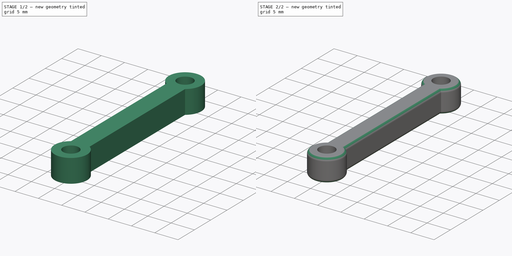
[diagram: build sequence overview — one tinted view per stage of 2, left to right]
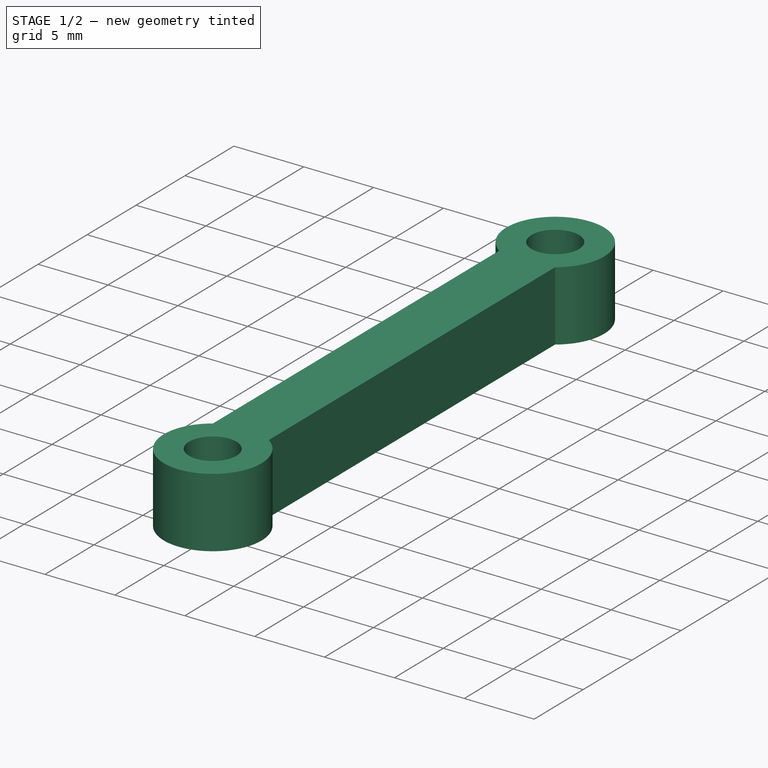
[diagram: stage 1 of 2 — iso view after this stage's code; geometry added in this stage tinted green]
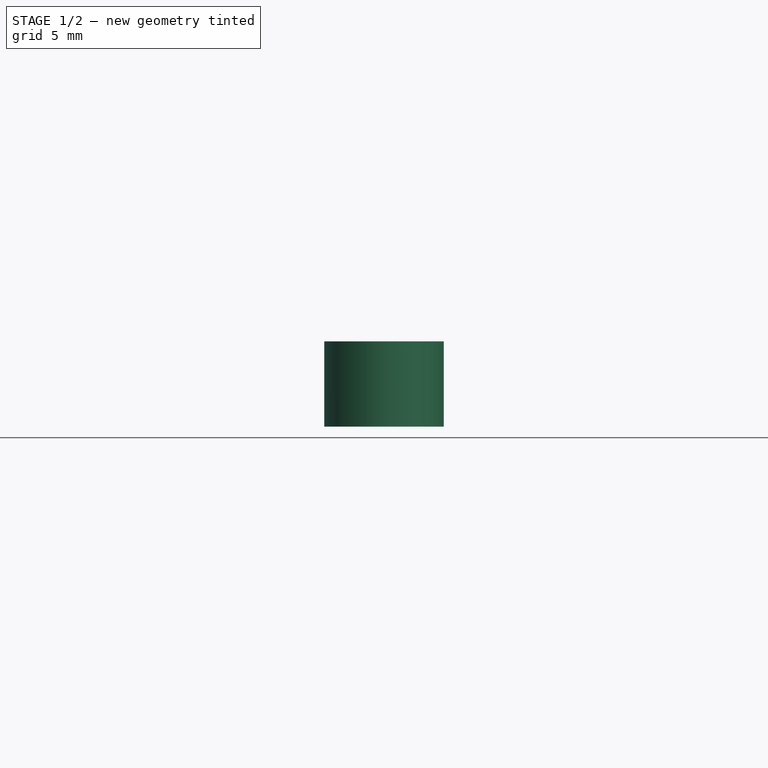
[diagram: stage 1 of 2 — front view after this stage's code; geometry added in this stage tinted green]
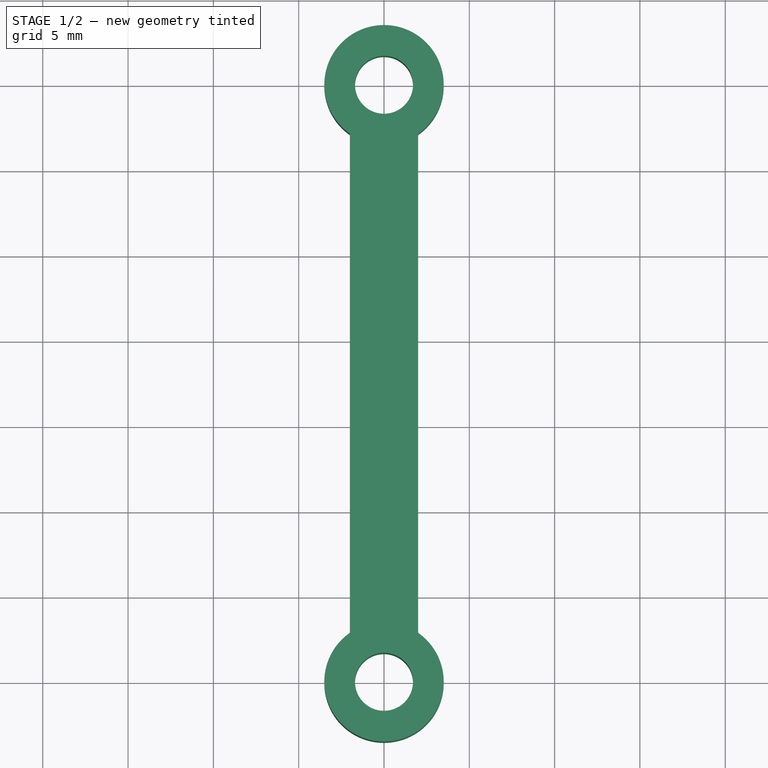
[diagram: stage 1 of 2 — top view after this stage's code; geometry added in this stage tinted green]
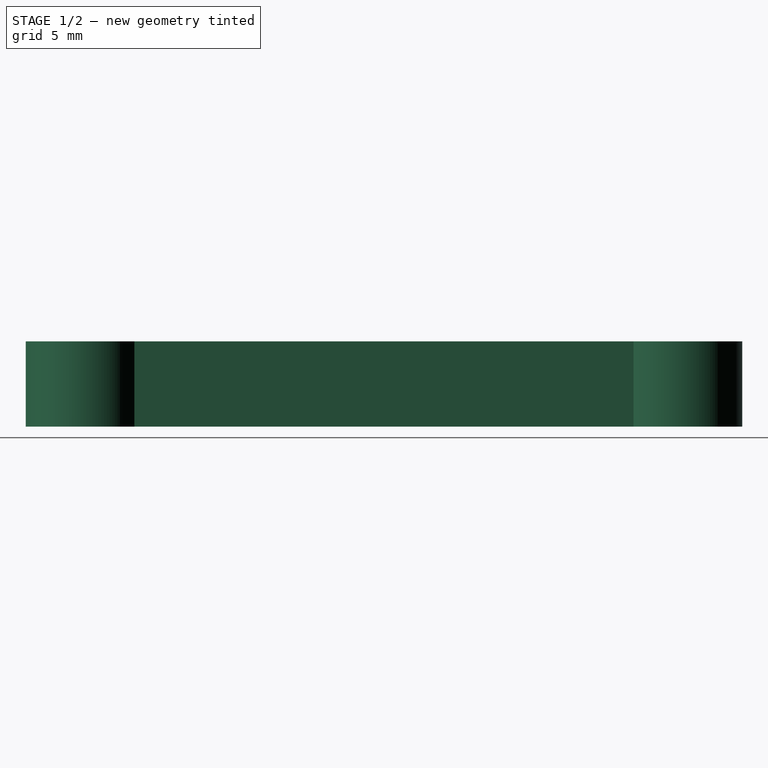
[diagram: stage 1 of 2 — right view after this stage's code; geometry added in this stage tinted green]
FCSTD DOCUMENT  (FreeCAD 0.19R24276 (Git))
Label: GripperArm
License: All rights reserved
LicenseURL: http://en.wikipedia.org/wiki/All_rights_reserved
objects: PartDesign::CoordinateSystem×2, Sketcher::SketchObject×1, Spreadsheet::Sheet×1, PartDesign::Pad×1, PartDesign::Fillet×1, PartDesign::Body×1
note: 8 computed .brp shape members not serialized (recipe doc carries the construction recipe); baked Part::Feature solids carry a one-line shape summary decoded from their .brp

FEATURE [Sketcher::SketchObject] Sketch
  FullyConstrained = true
  MapMode = 5
  Support = -> [XY_Plane]
  expr: Constraints[12] = Spreadsheet.M3BoltBodyRadius
  sketch-geometry (6):
    g0: Circle CenterX=0 CenterY=0 CenterZ=0 NormalX=0 NormalY=0 NormalZ=1 AngleXU=0 Radius=1.7
    g1: Circle CenterX=0 CenterY=35 CenterZ=0 NormalX=0 NormalY=0 NormalZ=1 AngleXU=0 Radius=1.7
    g2: ArcOfCircle CenterX=0 CenterY=35 CenterZ=0 NormalX=0 NormalY=0 NormalZ=1 AngleXU=0 Radius=3.5 StartAngle=5.32063 EndAngle=10.3873
    g3: ArcOfCircle CenterX=0 CenterY=0 CenterZ=0 NormalX=0 NormalY=0 NormalZ=1 AngleXU=0 Radius=3.5 StartAngle=2.17904 EndAngle=7.24574
    g4: LineSegment StartX=-2 StartY=32.1277 StartZ=0 EndX=-2 EndY=2.87228 EndZ=0
    g5: LineSegment StartX=2 StartY=32.1277 StartZ=0 EndX=2 EndY=2.87228 EndZ=0
  constraints (17):
    c: Coincident(g0,g-1)
    c: PointOnObject(g1,g-2)
    c: Coincident(g2,g1)
    c: Coincident(g3,g0)
    c: Coincident(g4,g2)
    c: Coincident(g4,g3)
    c: Coincident(g5,g2)
    c: Coincident(g5,g3)
    c: Vertical(g5)
    c: Vertical(g4)
    c: DistanceY(g3,g3) = 0
    c: DistanceX(g3,g3) = 4
    c: Radius(g0) = 1.7
    c: Radius(g3) = 3.5
    c: DistanceY(g0,g1) = 35
    c: Equal(g1,g0)
    c: Equal(g2,g3)
FEATURE [Spreadsheet::Sheet] Spreadsheet
  cells = A2=M3BoltBodyRadius; B2(M3BoltBodyRadius)=1.7; A3=M3BoltHeadRadius; B3(M3BoltHeadRadius)=2.95; A4=M3NutCircumradius; B4(M3NutCircumradius)=3.35; A5=M3NutThickness; B5(M3NutThickness)=3; A6=Bearing655ZZBodyRadius; B6(Bearing655ZZBodyRadius)=8.199999999999999
FEATURE [PartDesign::Pad] Pad
  Direction = (1,1,1)
  Length = 5
  Length2 = 100
  Profile = -> Sketch
  Refine = true
  Type = 0
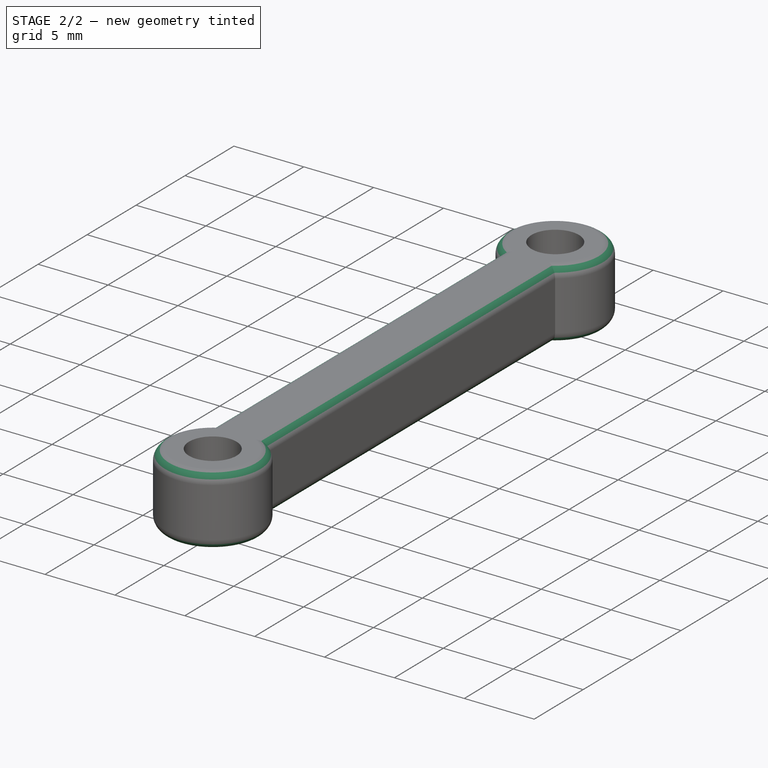
[diagram: stage 2 of 2 — iso view after this stage's code; geometry added in this stage tinted green]
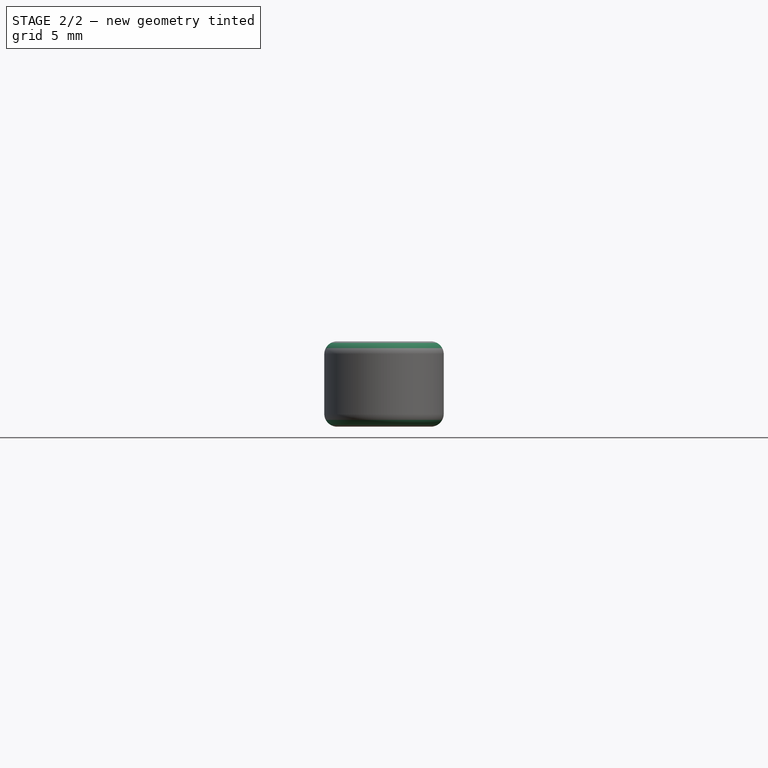
[diagram: stage 2 of 2 — front view after this stage's code; geometry added in this stage tinted green]
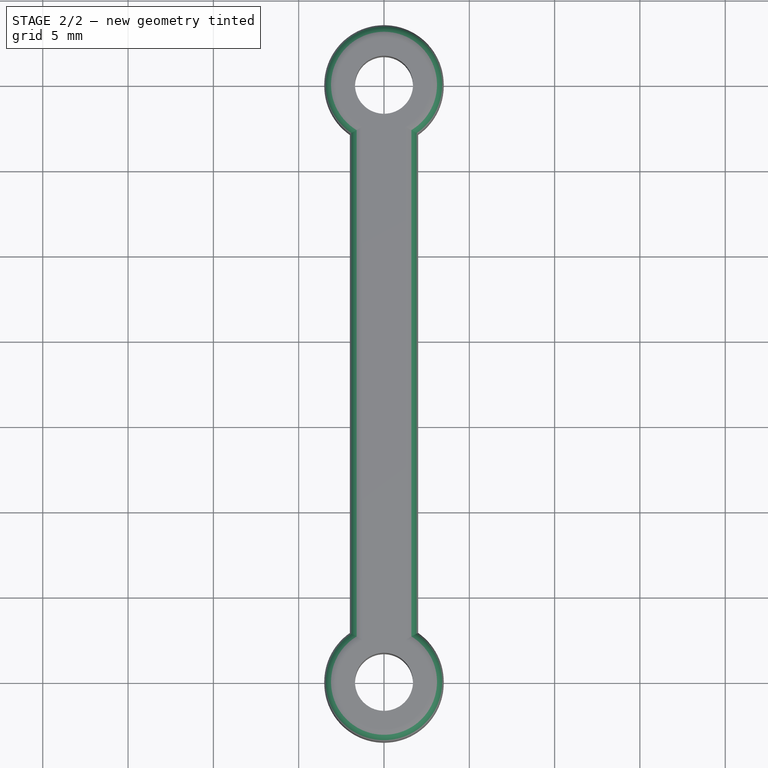
[diagram: stage 2 of 2 — top view after this stage's code; geometry added in this stage tinted green]
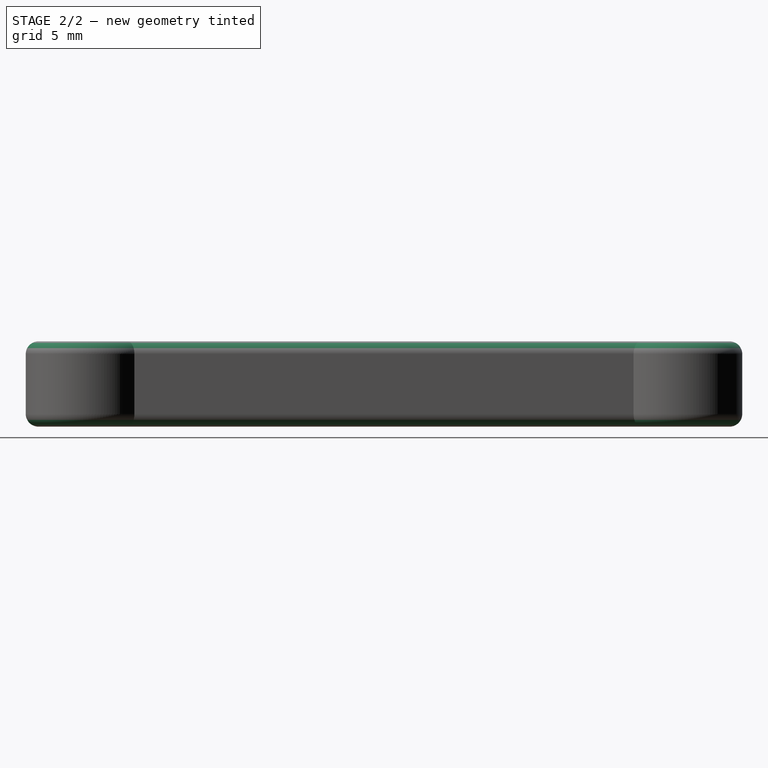
[diagram: stage 2 of 2 — right view after this stage's code; geometry added in this stage tinted green]
FEATURE [PartDesign::Fillet] Fillet
  Base = -> Pad [Edge10,Edge9,Edge12,Edge11,Edge7,Edge4,Edge3,Edge6]
  BaseFeature = -> Pad
  Radius = 0.75
  Refine = true
  SupportTransform = false
FEATURE [PartDesign::CoordinateSystem] LCS_GripperArm
  AttacherType = Attacher::AttachEngine3D
  MapMode = 11
  Placement = pos=(0,0,0) rot=(0,0,1;1.5708rad)
  Support = -> [Fillet]
FEATURE [PartDesign::CoordinateSystem] LCS_GripperArm_1
  AttacherType = Attacher::AttachEngine3D
  MapMode = 11
  Placement = pos=(0,35,0) rot=(0,0,1;1.5708rad)
  Support = -> [Fillet]
FEATURE [PartDesign::Body] Body  label="GripperArm"
  Group = -> [Sketch,Pad,Fillet,LCS_GripperArm,LCS_GripperArm_1]
  Origin = -> Origin
  Tip = -> Fillet
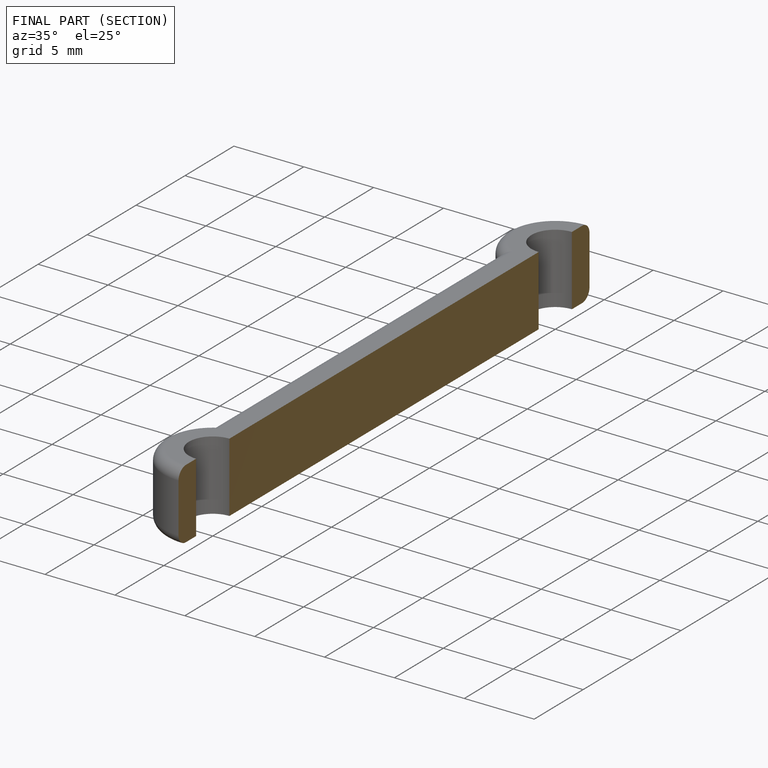
[diagram: finished part — half-section view (interior)]
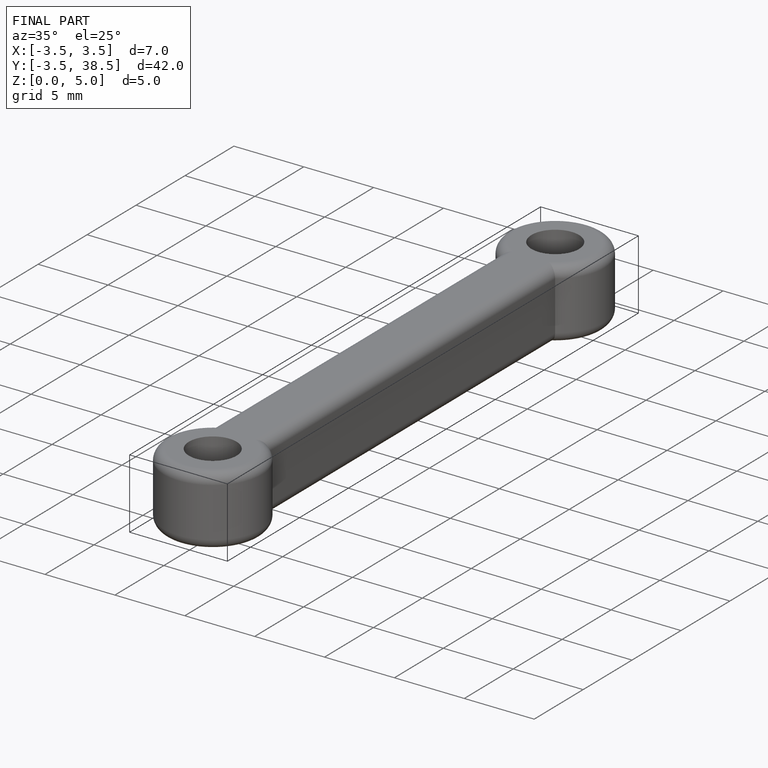
[diagram: finished part — iso view with bounding-box wireframe]
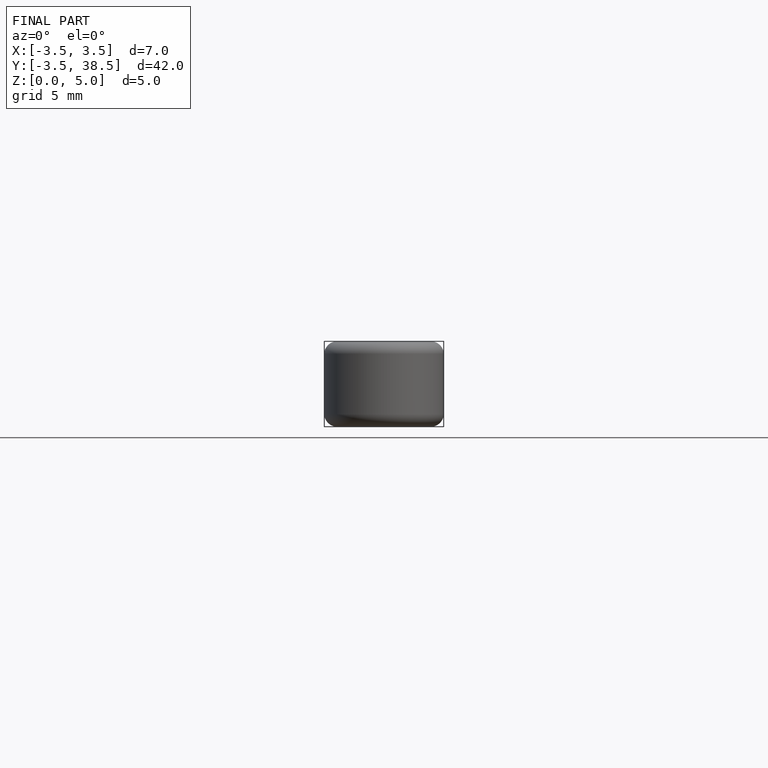
[diagram: finished part — front view with bounding-box wireframe]
